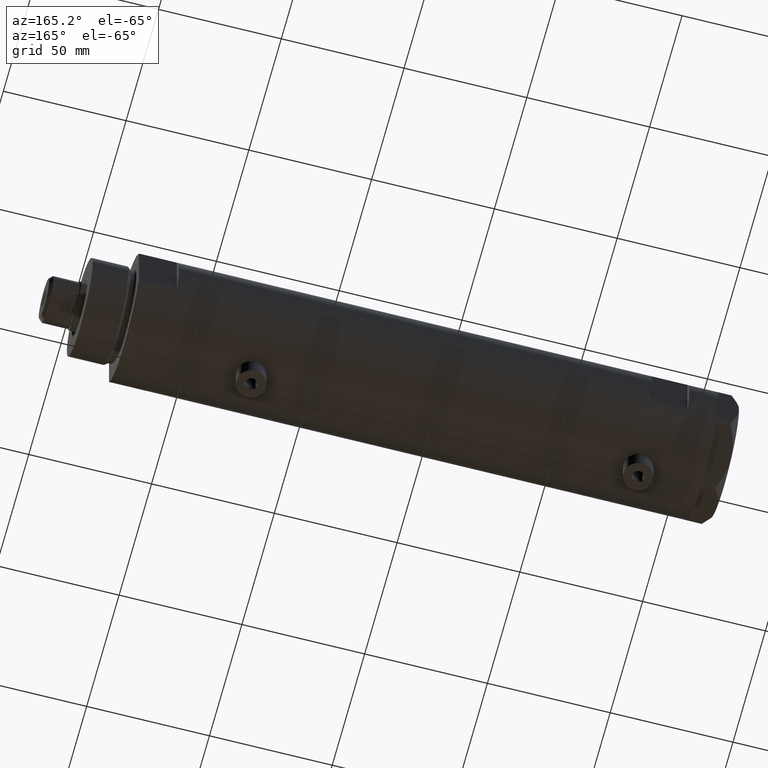
[diagram: clean part render]
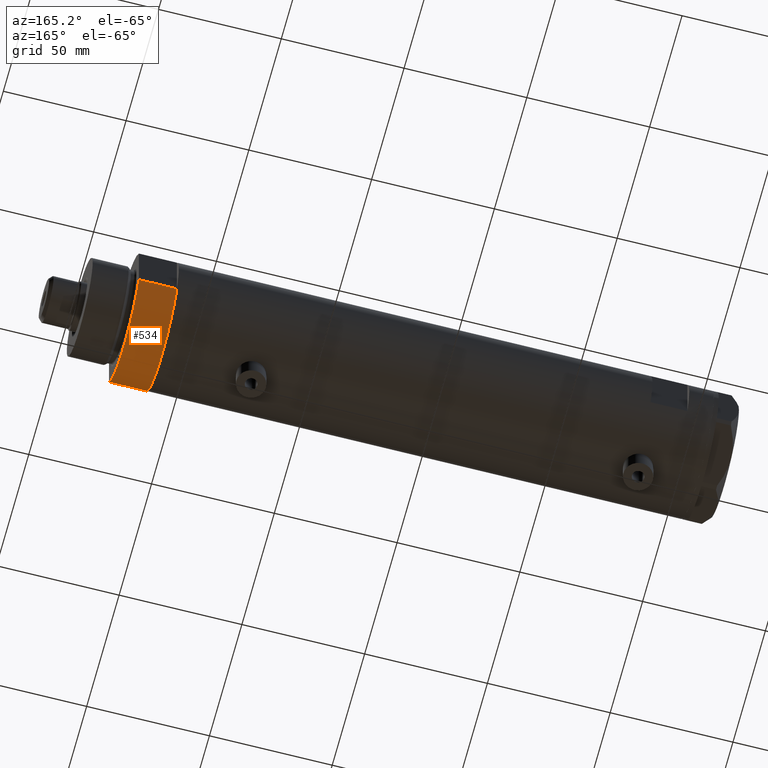
[diagram: same view with one face highlighted and labeled with its STEP entity id]
A machine part, auxiliary view. The second image highlights one B-rep face of the part: STEP entity #534.
In plain terms, the highlighted cylindrical surface (partial cylindrical patch) has radius 26 mm, axis along (-1, -0, 0).
Its self-contained STEP definition (entity closure, byte-faithful):
#181 = CARTESIAN_POINT ( 'NONE',  ( 12.12435565298215323, -22.99999999999999645, 0.000000000000000000 ) ) ;
#396 = DIRECTION ( 'NONE',  ( -1.000000000000000000, 0.000000000000000000, 0.000000000000000000 ) ) ;
#471 = CYLINDRICAL_SURFACE ( 'NONE', #3979, 26.00000000000000355 ) ;
#534 = ADVANCED_FACE ( 'NONE', ( #2026 ), #471, .T. ) ;
#600 = ORIENTED_EDGE ( 'NONE', *, *, #3938, .T. ) ;
#613 = CARTESIAN_POINT ( 'NONE',  ( 12.12435565298214080, 23.00000000000000355, 0.000000000000000000 ) ) ;
#623 = VECTOR ( 'NONE', #1778, 1000.000000000000000 ) ;
#677 = EDGE_CURVE ( 'NONE', #739, #3459, #1336, .T. ) ;
#685 = ORIENTED_EDGE ( 'NONE', *, *, #3375, .T. ) ;
#739 = VERTEX_POINT ( 'NONE', #4305 ) ;
#812 = VECTOR ( 'NONE', #1672, 1000.000000000000000 ) ;
#869 = DIRECTION ( 'NONE',  ( 1.000000000000000000, 0.000000000000000000, 0.000000000000000000 ) ) ;
#984 = AXIS2_PLACEMENT_3D ( 'NONE', #3949, #4342, #2736 ) ;
#1336 = LINE ( 'NONE', #181, #623 ) ;
#1672 = DIRECTION ( 'NONE',  ( -0.000000000000000000, -0.000000000000000000, 1.000000000000000000 ) ) ;
#1719 = AXIS2_PLACEMENT_3D ( 'NONE', #4922, #4582, #869 ) ;
#1778 = DIRECTION ( 'NONE',  ( -0.000000000000000000, -0.000000000000000000, 1.000000000000000000 ) ) ;
#2026 = FACE_OUTER_BOUND ( 'NONE', #4620, .T. ) ;
#2143 = EDGE_CURVE ( 'NONE', #3459, #2522, #3490, .T. ) ;
#2283 = VERTEX_POINT ( 'NONE', #613 ) ;
#2522 = VERTEX_POINT ( 'NONE', #4547 ) ;
#2736 = DIRECTION ( 'NONE',  ( 1.000000000000000000, 0.000000000000000000, 0.000000000000000000 ) ) ;
#3016 = CARTESIAN_POINT ( 'NONE',  ( 12.12435565298215323, -22.99999999999999645, 15.50000000000000000 ) ) ;
#3375 = EDGE_CURVE ( 'NONE', #2283, #2522, #3674, .T. ) ;
#3418 = CIRCLE ( 'NONE', #984, 26.00000000000000355 ) ;
#3459 = VERTEX_POINT ( 'NONE', #3016 ) ;
#3490 = CIRCLE ( 'NONE', #1719, 26.00000000000000355 ) ;
#3628 = CARTESIAN_POINT ( 'NONE',  ( 0.000000000000000000, 0.000000000000000000, 15.50000000000000000 ) ) ;
#3650 = ORIENTED_EDGE ( 'NONE', *, *, #677, .F. ) ;
#3674 = LINE ( 'NONE', #3719, #812 ) ;
#3719 = CARTESIAN_POINT ( 'NONE',  ( 12.12435565298215323, 23.00000000000000355, 0.000000000000000000 ) ) ;
#3938 = EDGE_CURVE ( 'NONE', #739, #2283, #3418, .T. ) ;
#3949 = CARTESIAN_POINT ( 'NONE',  ( 0.000000000000000000, 0.000000000000000000, 0.000000000000000000 ) ) ;
#3979 = AXIS2_PLACEMENT_3D ( 'NONE', #3628, #4834, #396 ) ;
#4092 = ORIENTED_EDGE ( 'NONE', *, *, #2143, .F. ) ;
#4305 = CARTESIAN_POINT ( 'NONE',  ( 12.12435565298215323, -22.99999999999999645, 0.000000000000000000 ) ) ;
#4342 = DIRECTION ( 'NONE',  ( 0.000000000000000000, 0.000000000000000000, 1.000000000000000000 ) ) ;
#4547 = CARTESIAN_POINT ( 'NONE',  ( 12.12435565298214790, 23.00000000000000355, 15.50000000000000000 ) ) ;
#4582 = DIRECTION ( 'NONE',  ( 0.000000000000000000, 0.000000000000000000, 1.000000000000000000 ) ) ;
#4620 = EDGE_LOOP ( 'NONE', ( #4092, #3650, #600, #685 ) ) ;
#4834 = DIRECTION ( 'NONE',  ( -0.000000000000000000, -0.000000000000000000, -1.000000000000000000 ) ) ;
#4922 = CARTESIAN_POINT ( 'NONE',  ( 0.000000000000000000, 0.000000000000000000, 15.50000000000000000 ) ) ;